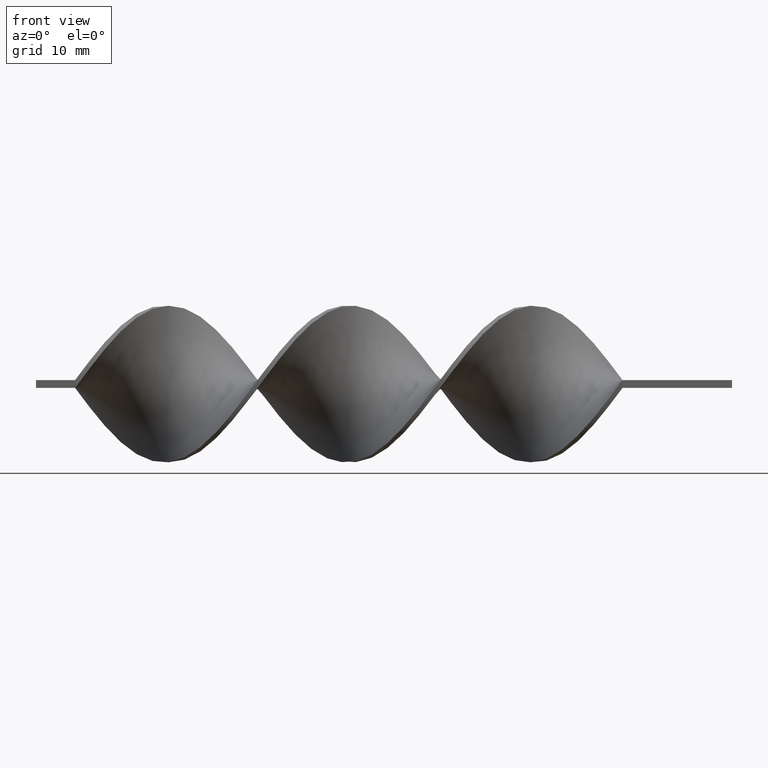
[diagram: clean part render]
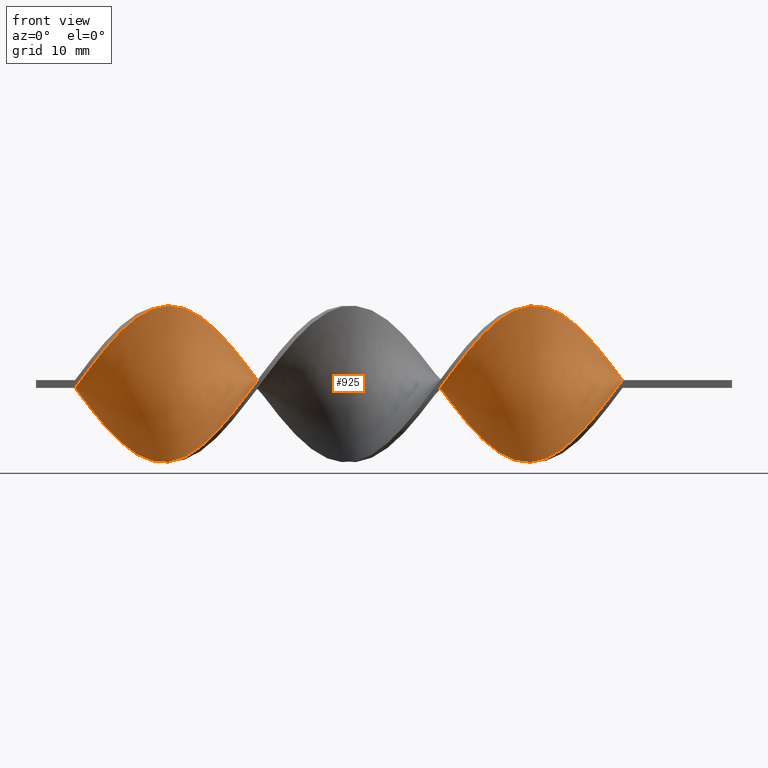
[diagram: same view with one face highlighted and labeled with its STEP entity id]
A machine part, front view. The second image highlights one B-rep face of the part: STEP entity #925.
In plain terms, the highlighted face is a freeform B-spline surface patch.
Its self-contained STEP definition (entity closure, byte-faithful):
#7 = ORIENTED_EDGE ( 'NONE', *, *, #165, .F. ) ;
#14 = CARTESIAN_POINT ( 'NONE',  ( -47.20512820512820440, -1.921697069441249628, -9.901267393559574970 ) ) ;
#17 = CARTESIAN_POINT ( 'NONE',  ( -25.66666666666666785, -0.5036723384328433140, -10.07344676865682764 ) ) ;
#25 = CARTESIAN_POINT ( 'NONE',  ( -19.38461538461538325, 7.153546152590613438, 7.005481956493501805 ) ) ;
#27 = CARTESIAN_POINT ( 'NONE',  ( -42.71794871794872250, 7.816668810831409964, 6.256971208322399391 ) ) ;
#31 = CARTESIAN_POINT ( 'NONE',  ( -20.28205128205128460, 6.302926640005410697, 7.874079717413027701 ) ) ;
#33 = CARTESIAN_POINT ( 'NONE',  ( -52.58974358974358410, -4.235384428724044525, 9.153662347191259485 ) ) ;
#38 = CARTESIAN_POINT ( 'NONE',  ( -22.07692307692308020, 4.235384428724049855, 9.153662347191257709 ) ) ;
#40 = CARTESIAN_POINT ( 'NONE',  ( -31.05128205128205821, 6.302926640005407144, -7.874079717413028590 ) ) ;
#48 = CARTESIAN_POINT ( 'NONE',  ( -45.41025641025640880, -4.235384428724056960, -9.153662347191254156 ) ) ;
#50 = CARTESIAN_POINT ( 'NONE',  ( -19.38461538461538325, -7.816668810831409964, -6.256971208322401168 ) ) ;
#54 = CARTESIAN_POINT ( 'NONE',  ( -16.69230769230769340, -9.597441021197470334, -3.101151636102497555 ) ) ;
#56 = CARTESIAN_POINT ( 'NONE',  ( -79.51282051282051100, 8.004165665175813515, -6.136884195573980350 ) ) ;
#65 = CARTESIAN_POINT ( 'NONE',  ( -76.82051282051281760, 5.269155534364728055, -8.513871032302143149 ) ) ;
#71 = CARTESIAN_POINT ( 'NONE',  ( -15.79487179487179205, 9.589760342116738556, 2.878627551588603062 ) ) ;
#79 = CARTESIAN_POINT ( 'NONE',  ( -37.33333333333332860, -10.00000000000000178, -0.4999999999999988343 ) ) ;
#86 = ORIENTED_EDGE ( 'NONE', *, *, #1263, .F. ) ;
#90 = CARTESIAN_POINT ( 'NONE',  ( -17.58974358974358765, 8.622198670510211826, 5.089959733264290520 ) ) ;
#95 = CARTESIAN_POINT ( 'NONE',  ( -30.15384615384615330, 5.269155534364728055, -8.513871032302143149 ) ) ;
#98 = CARTESIAN_POINT ( 'NONE',  ( -71.43589743589743080, 0.7090123655042038786, 9.987357081108200418 ) ) ;
#104 = CARTESIAN_POINT ( 'NONE',  ( -40.92307692307691980, 9.086921842553980611, 4.204503707611078944 ) ) ;
#106 = CARTESIAN_POINT ( 'NONE',  ( -61.56410256410256920, 9.939289008388868751, 1.714219832222605433 ) ) ;
#112 = CARTESIAN_POINT ( 'NONE',  ( -71.43589743589743080, -1.701721239602260516, -9.866820400852878592 ) ) ;
#113 = CARTESIAN_POINT ( 'NONE',  ( -80.41025641025640880, -9.086921842553984163, 4.204503707611081609 ) ) ;
#121 = CARTESIAN_POINT ( 'NONE',  ( -58.87179487179486870, -9.589760342116740333, 2.878627551588612388 ) ) ;
#122 = CARTESIAN_POINT ( 'NONE',  ( -56.17948717948717530, 8.576402663910496216, -5.307855779119664774 ) ) ;
#128 = CARTESIAN_POINT ( 'NONE',  ( -24.76923076923076650, -1.701721239602260516, -9.866820400852878592 ) ) ;
#129 = CARTESIAN_POINT ( 'NONE',  ( -79.51282051282051100, -8.576402663910499768, 5.307855779119662998 ) ) ;
#136 = CARTESIAN_POINT ( 'NONE',  ( -57.07692307692307310, 9.086921842553978834, -4.204503707611086938 ) ) ;
#146 = CARTESIAN_POINT ( 'NONE',  ( -58.87179487179486870, 9.829076006404296351, -1.907685734162560820 ) ) ;
#148 = CARTESIAN_POINT ( 'NONE',  ( -49.89743589743589069, -0.7090123655041976614, 9.987357081108202195 ) ) ;
#152 = CARTESIAN_POINT ( 'NONE',  ( -32.84615384615384670, -8.576402663910499768, 5.307855779119662998 ) ) ;
#155 = CARTESIAN_POINT ( 'NONE',  ( -39.12820512820512420, 9.829076006404298127, 1.907685734162548385 ) ) ;
#162 = CARTESIAN_POINT ( 'NONE',  ( -67.84615384615385381, 5.269155534364730720, 8.513871032302141373 ) ) ;
#165 = EDGE_CURVE ( 'NONE', #1292, #1039, #185, .T. ) ;
#168 = CARTESIAN_POINT ( 'NONE',  ( -83.10256410256410220, 9.939289008388868751, -1.714219832222609874 ) ) ;
#170 = CARTESIAN_POINT ( 'NONE',  ( -25.66666666666666785, -0.5036723384328420927, 10.07344676865682942 ) ) ;
#177 = CARTESIAN_POINT ( 'NONE',  ( -37.33333333333332860, 9.999999999999998224, -0.5000000000000012212 ) ) ;
#185 = B_SPLINE_CURVE_WITH_KNOTS ( 'NONE', 3,
 ( #371, #501, #990, #864 ),
 .UNSPECIFIED., .F., .F.,
 ( 4, 4 ),
 ( 0.000000000000000000, 1.000000000000000000 ),
 .UNSPECIFIED. ) ;
#186 = CARTESIAN_POINT ( 'NONE',  ( -14.89743589743589602, 9.939289008388868751, 1.714219832222605433 ) ) ;
#189 = CARTESIAN_POINT ( 'NONE',  ( -13.99999999999999645, -10.00000000000000178, 0.5000000000000000000 ) ) ;
#191 = CARTESIAN_POINT ( 'NONE',  ( -70.53846153846153300, 1.921697069441247852, 9.901267393559574970 ) ) ;
#194 = CARTESIAN_POINT ( 'NONE',  ( -24.76923076923076650, 0.7090123655042038786, 9.987357081108200418 ) ) ;
#201 = CARTESIAN_POINT ( 'NONE',  ( -63.35897435897435770, -9.597441021197470334, -3.101151636102497555 ) ) ;
#207 = CARTESIAN_POINT ( 'NONE',  ( -75.92307692307693401, 4.235384428724049855, -9.153662347191257709 ) ) ;
#214 = CARTESIAN_POINT ( 'NONE',  ( -55.28205128205128460, -7.153546152590610774, 7.005481956493506246 ) ) ;
#217 = CARTESIAN_POINT ( 'NONE',  ( -63.35897435897435770, 9.240231675844615467, 4.043035270954601579 ) ) ;
#224 = CARTESIAN_POINT ( 'NONE',  ( -48.10256410256410220, 1.701721239602261404, 9.866820400852876816 ) ) ;
#227 = CARTESIAN_POINT ( 'NONE',  ( -60.66666666666666430, 9.999999999999998224, 0.5000000000000000000 ) ) ;
#232 =( BOUNDED_CURVE ( )  B_SPLINE_CURVE ( 2, ( #287, #534, #663, #1033, #549, #1407, #25, #31, #1017, #38, #524, #542, #1537, #170, #644, #395, #1140, #424, #909, #1281, #763, #152, #1169, #1400, #1545, #1414, #265, #1381, #271, #1146, #754, #1024, #652, #1527, #414, #48, #789, #14, #1520, #1043, #1152, #898, #278, #514, #1273, #1296, #879, #1162, #136, #1389, #146, #407, #434, #777, #1510, #670, #891, #257, #1288, #1267, #162, #1004, #568, #191, #1187, #1088, #1448, #704, #917, #831, #815, #922, #807, #1420, #822, #694, #437, #294, #1195 ),
 .UNSPECIFIED., .F., .T. ) 
 B_SPLINE_CURVE_WITH_KNOTS ( ( 3, 2, 2, 2, 2, 2, 2, 2, 2, 2, 2, 2, 2, 2, 2, 2, 2, 2, 2, 2, 2, 2, 2, 2, 2, 2, 2, 2, 2, 2, 2, 2, 2, 2, 2, 2, 2, 2, 2, 3 ),
 ( 0.000000000000000000, 0.01923076923076923184, 0.03846153846153846367, 0.05769230769230768857, 0.07692307692307692735, 0.09615384615384615918, 0.1153846153846153771, 0.1346153846153846090, 0.1538461538461538547, 0.1730769230769230449, 0.1923076923076923184, 0.2115384615384615363, 0.2307692307692307543, 0.2500000000000000000, 0.2692307692307692180, 0.2884615384615384359, 0.3076923076923077094, 0.3269230769230769273, 0.3461538461538460898, 0.3653846153846153633, 0.3846153846153846367, 0.4038461538461539102, 0.4230769230769230727, 0.4423076923076922906, 0.4615384615384615086, 0.4807692307692307820, 0.5000000000000000000, 0.5192307692307692735, 0.5384615384615384359, 0.5576923076923077094, 0.5769230769230768718, 0.5961538461538461453, 0.6153846153846154188, 0.6346153846153845812, 0.6538461538461538547, 0.6730769230769230171, 0.6923076923076921796, 0.7115384615384615641, 0.7307692307692307265, 0.7500000000000000000 ),
 .UNSPECIFIED. ) 
 CURVE ( )  GEOMETRIC_REPRESENTATION_ITEM ( )  RATIONAL_B_SPLINE_CURVE ( ( 1.000000000000000000, 0.9927088740980539727, 1.000000000000000000, 0.9927088740980539727, 1.000000000000000000, 0.9927088740980539727, 1.000000000000000000, 0.9927088740980539727, 1.000000000000000000, 0.9927088740980539727, 1.000000000000000000, 0.9927088740980539727, 1.000000000000000000, 0.9927088740980539727, 1.000000000000000000, 0.9927088740980539727, 1.000000000000000000, 0.9927088740980539727, 1.000000000000000000, 0.9927088740980539727, 1.000000000000000000, 0.9927088740980539727, 1.000000000000000000, 0.9927088740980539727, 1.000000000000000000, 0.9927088740980539727, 1.000000000000000000, 0.9927088740980539727, 1.000000000000000000, 0.9927088740980539727, 1.000000000000000000, 0.9927088740980539727, 1.000000000000000000, 0.9927088740980539727, 1.000000000000000000, 0.9927088740980539727, 1.000000000000000000, 0.9927088740980539727, 1.000000000000000000, 0.9927088740980539727, 1.000000000000000000, 0.9927088740980539727, 1.000000000000000000, 0.9927088740980539727, 1.000000000000000000, 0.9927088740980539727, 1.000000000000000000, 0.9927088740980539727, 1.000000000000000000, 0.9927088740980539727, 1.000000000000000000, 0.9927088740980539727, 1.000000000000000000, 0.9927088740980539727, 1.000000000000000000, 0.9927088740980539727, 1.000000000000000000, 0.9927088740980539727, 1.000000000000000000, 0.9927088740980539727, 1.000000000000000000, 0.9927088740980539727, 1.000000000000000000, 0.9927088740980539727, 1.000000000000000000, 0.9927088740980539727, 1.000000000000000000, 0.9927088740980539727, 1.000000000000000000, 0.9927088740980539727, 1.000000000000000000, 0.9927088740980539727, 1.000000000000000000, 0.9927088740980539727, 1.000000000000000000, 0.9927088740980539727, 1.000000000000000000, 0.9927088740980539727, 1.000000000000000000 ) ) 
 REPRESENTATION_ITEM ( '' )  );
#233 = CARTESIAN_POINT ( 'NONE',  ( -39.12820512820512420, 9.829076006404298127, 1.907685734162548385 ) ) ;
#236 = CARTESIAN_POINT ( 'NONE',  ( -75.92307692307693401, -5.127343842764454429, 8.685525933616832006 ) ) ;
#242 = CARTESIAN_POINT ( 'NONE',  ( -47.20512820512820440, 2.899770140771672278, 9.660194033048927764 ) ) ;
#244 = CARTESIAN_POINT ( 'NONE',  ( -84.00000000000000000, -10.00000000000000178, -0.4999999999999988343 ) ) ;
#251 = CARTESIAN_POINT ( 'NONE',  ( -60.66666666666666430, -10.00000000000000178, 0.5000000000000000000 ) ) ;
#257 = CARTESIAN_POINT ( 'NONE',  ( -65.15384615384614619, 8.004165665175815292, 6.136884195573979461 ) ) ;
#265 = CARTESIAN_POINT ( 'NONE',  ( -37.33333333333332860, -10.00000000000000178, -0.4999999999999988343 ) ) ;
#267 = CARTESIAN_POINT ( 'NONE',  ( -48.10256410256410220, 1.701721239602261404, 9.866820400852876816 ) ) ;
#271 = CARTESIAN_POINT ( 'NONE',  ( -39.12820512820512420, -9.589760342116745662, -2.878627551588600397 ) ) ;
#273 = CARTESIAN_POINT ( 'NONE',  ( -17.58974358974358765, -9.086921842553984163, -4.204503707611079832 ) ) ;
#278 = CARTESIAN_POINT ( 'NONE',  ( -51.69230769230769340, 4.013556991768062687, -9.172859983332880773 ) ) ;
#281 = CARTESIAN_POINT ( 'NONE',  ( -30.15384615384615330, 5.269155534364728055, -8.513871032302143149 ) ) ;
#287 = CARTESIAN_POINT ( 'NONE',  ( -13.99999999999999822, 9.999999999999998224, 0.5000000000000000000 ) ) ;
#289 = CARTESIAN_POINT ( 'NONE',  ( -27.46153846153846345, 1.921697069441246519, -9.901267393559574970 ) ) ;
#294 = CARTESIAN_POINT ( 'NONE',  ( -83.10256410256410220, -10.06071099161113480, 0.7142198322226099849 ) ) ;
#306 = CARTESIAN_POINT ( 'NONE',  ( -53.48717948717948900, -5.269155534364728943, 8.513871032302144926 ) ) ;
#313 = CARTESIAN_POINT ( 'NONE',  ( -14.89743589743589602, -10.06071099161113480, -0.7142198322226054330 ) ) ;
#319 = CARTESIAN_POINT ( 'NONE',  ( -16.69230769230769695, 9.240231675844615467, 4.043035270954601579 ) ) ;
#328 = CARTESIAN_POINT ( 'NONE',  ( -18.48717948717948545, 8.004165665175815292, 6.136884195573979461 ) ) ;
#339 = CARTESIAN_POINT ( 'NONE',  ( -20.28205128205128460, 6.302926640005411585, 7.874079717413027701 ) ) ;
#343 = CARTESIAN_POINT ( 'NONE',  ( -52.58974358974359120, -4.235384428724044525, 9.153662347191259485 ) ) ;
#345 = CARTESIAN_POINT ( 'NONE',  ( -55.28205128205128460, -7.153546152590610774, 7.005481956493506246 ) ) ;
#352 = CARTESIAN_POINT ( 'NONE',  ( -49.89743589743589069, -0.7090123655041976614, 9.987357081108202195 ) ) ;
#355 = CARTESIAN_POINT ( 'NONE',  ( -44.51282051282051100, -5.269155534364732496, -8.513871032302141373 ) ) ;
#362 = CARTESIAN_POINT ( 'NONE',  ( -61.56410256410256920, -10.06071099161113480, -0.7142198322226054330 ) ) ;
#365 = CARTESIAN_POINT ( 'NONE',  ( -74.12820512820512420, -2.899770140771674498, 9.660194033048927764 ) ) ;
#369 = CARTESIAN_POINT ( 'NONE',  ( -80.41025641025640880, 8.622198670510211826, -5.089959733264292296 ) ) ;
#371 = CARTESIAN_POINT ( 'NONE',  ( -84.00000000000000000, 9.999999999999998224, -0.5000000000000012212 ) ) ;
#372 = CARTESIAN_POINT ( 'NONE',  ( -49.00000000000000711, 0.5036723384328385400, -10.07344676865682764 ) ) ;
#378 = CARTESIAN_POINT ( 'NONE',  ( -49.00000000000000000, 0.5036723384328420927, 10.07344676865682942 ) ) ;
#379 = CARTESIAN_POINT ( 'NONE',  ( -40.02564102564102200, -9.240231675844620796, -4.043035270954598914 ) ) ;
#395 = CARTESIAN_POINT ( 'NONE',  ( -27.46153846153846345, -2.899770140771674498, 9.660194033048927764 ) ) ;
#397 = CARTESIAN_POINT ( 'NONE',  ( -41.82051282051281760, 8.576402663910497992, 5.307855779119661221 ) ) ;
#407 = CARTESIAN_POINT ( 'NONE',  ( -59.76923076923076650, 10.06071099161113125, -0.7142198322226109841 ) ) ;
#409 = CARTESIAN_POINT ( 'NONE',  ( -49.00000000000000711, 0.5036723384328420927, 10.07344676865682764 ) ) ;
#414 = CARTESIAN_POINT ( 'NONE',  ( -44.51282051282051100, -5.269155534364732496, -8.513871032302141373 ) ) ;
#416 = CARTESIAN_POINT ( 'NONE',  ( -16.69230769230769695, -9.597441021197470334, -3.101151636102497555 ) ) ;
#424 = CARTESIAN_POINT ( 'NONE',  ( -29.25641025641025905, -5.127343842764455317, 8.685525933616832006 ) ) ;
#434 = CARTESIAN_POINT ( 'NONE',  ( -60.66666666666666430, 9.999999999999998224, 0.5000000000000000000 ) ) ;
#437 = CARTESIAN_POINT ( 'NONE',  ( -82.20512820512820440, -9.829076006404299903, 1.907685734162555047 ) ) ;
#439 = CARTESIAN_POINT ( 'NONE',  ( -31.94871794871794535, -7.816668810831408187, 6.256971208322403832 ) ) ;
#445 = CARTESIAN_POINT ( 'NONE',  ( -21.17948717948717885, -6.092139400258388626, -7.945806285570984784 ) ) ;
#447 = CARTESIAN_POINT ( 'NONE',  ( -58.87179487179486870, -9.589760342116740333, 2.878627551588612388 ) ) ;
#455 = CARTESIAN_POINT ( 'NONE',  ( -32.84615384615384670, -8.576402663910499768, 5.307855779119662998 ) ) ;
#462 = CARTESIAN_POINT ( 'NONE',  ( -13.99999999999999645, -10.00000000000000178, 0.5000000000000000000 ) ) ;
#465 = CARTESIAN_POINT ( 'NONE',  ( -75.02564102564102200, 3.078540749082645966, -9.527464870375414563 ) ) ;
#470 = CARTESIAN_POINT ( 'NONE',  ( -73.23076923076924061, 0.7090123655042004369, -9.987357081108200418 ) ) ;
#472 = CARTESIAN_POINT ( 'NONE',  ( -28.35897435897435770, -4.013556991768063575, 9.172859983332880773 ) ) ;
#477 = CARTESIAN_POINT ( 'NONE',  ( -23.87179487179487580, -2.899770140771675830, -9.660194033048927764 ) ) ;
#481 = CARTESIAN_POINT ( 'NONE',  ( -58.87179487179486870, 9.829076006404296351, -1.907685734162560820 ) ) ;
#482 = VECTOR ( 'NONE', #1081, 1000.000000000000000 ) ;
#488 = CARTESIAN_POINT ( 'NONE',  ( -35.53846153846153300, 9.589760342116736780, -2.878627551588606615 ) ) ;
#489 = CARTESIAN_POINT ( 'NONE',  ( -72.33333333333332860, -0.5036723384328420927, 10.07344676865682764 ) ) ;
#491 = ORIENTED_EDGE ( 'NONE', *, *, #1030, .T. ) ;
#493 = CARTESIAN_POINT ( 'NONE',  ( -79.51282051282051100, 8.004165665175813515, -6.136884195573980350 ) ) ;
#494 = CARTESIAN_POINT ( 'NONE',  ( -53.48717948717948900, 6.092139400258383297, -7.945806285570988337 ) ) ;
#500 = CARTESIAN_POINT ( 'NONE',  ( -75.92307692307691980, 4.235384428724048966, -9.153662347191257709 ) ) ;
#501 = CARTESIAN_POINT ( 'NONE',  ( -84.00000000000000000, 3.333333333333332149, -0.5000000000000004441 ) ) ;
#514 = CARTESIAN_POINT ( 'NONE',  ( -52.58974358974359120, 5.127343842764449100, -8.685525933616833782 ) ) ;
#516 = CARTESIAN_POINT ( 'NONE',  ( -29.25641025641025905, 4.235384428724049855, -9.153662347191257709 ) ) ;
#521 = CARTESIAN_POINT ( 'NONE',  ( -82.20512820512820440, 9.589760342116736780, -2.878627551588606615 ) ) ;
#524 = CARTESIAN_POINT ( 'NONE',  ( -22.97435897435897090, 3.078540749082649519, 9.527464870375414563 ) ) ;
#525 = CARTESIAN_POINT ( 'NONE',  ( -36.43589743589743790, 9.939289008388868751, -1.714219832222609874 ) ) ;
#534 = CARTESIAN_POINT ( 'NONE',  ( -14.89743589743589602, 9.939289008388868751, 1.714219832222605433 ) ) ;
#535 = CARTESIAN_POINT ( 'NONE',  ( -40.92307692307691980, 9.086921842553980611, 4.204503707611078944 ) ) ;
#542 = CARTESIAN_POINT ( 'NONE',  ( -23.87179487179487580, 1.921697069441247852, 9.901267393559574970 ) ) ;
#549 = CARTESIAN_POINT ( 'NONE',  ( -17.58974358974358765, 8.622198670510211826, 5.089959733264290520 ) ) ;
#551 = CARTESIAN_POINT ( 'NONE',  ( -84.00000000000000000, 9.999999999999998224, -0.5000000000000012212 ) ) ;
#556 = CARTESIAN_POINT ( 'NONE',  ( -33.74358974358974450, -9.086921842553984163, 4.204503707611081609 ) ) ;
#563 = CARTESIAN_POINT ( 'NONE',  ( -77.71794871794872961, 6.302926640005407144, -7.874079717413028590 ) ) ;
#568 = CARTESIAN_POINT ( 'NONE',  ( -69.64102564102564941, 3.078540749082649519, 9.527464870375414563 ) ) ;
#571 = CARTESIAN_POINT ( 'NONE',  ( -26.56410256410256210, -1.701721239602257185, 9.866820400852878592 ) ) ;
#582 = CARTESIAN_POINT ( 'NONE',  ( -62.46153846153845990, -9.829076006404301680, -1.907685734162551494 ) ) ;
#590 = CARTESIAN_POINT ( 'NONE',  ( -65.15384615384614619, -8.576402663910501545, -5.307855779119662110 ) ) ;
#594 = CARTESIAN_POINT ( 'NONE',  ( -26.56410256410256210, 0.7090123655042004369, -9.987357081108200418 ) ) ;
#596 = CARTESIAN_POINT ( 'NONE',  ( -76.82051282051281760, -6.092139400258385962, 7.945806285570986560 ) ) ;
#602 = CARTESIAN_POINT ( 'NONE',  ( -57.07692307692307310, -8.622198670510213603, 5.089959733264296737 ) ) ;
#606 = CARTESIAN_POINT ( 'NONE',  ( -64.25641025641024839, 8.622198670510211826, 5.089959733264290520 ) ) ;
#612 = CARTESIAN_POINT ( 'NONE',  ( -31.05128205128205465, 6.302926640005407144, -7.874079717413029478 ) ) ;
#614 = CARTESIAN_POINT ( 'NONE',  ( -66.94871794871794179, 6.302926640005411585, 7.874079717413027701 ) ) ;
#620 = CARTESIAN_POINT ( 'NONE',  ( -69.64102564102564941, -4.013556991768067128, -9.172859983332880773 ) ) ;
#630 = CARTESIAN_POINT ( 'NONE',  ( -70.53846153846153300, -2.899770140771675830, -9.660194033048927764 ) ) ;
#631 = CARTESIAN_POINT ( 'NONE',  ( -81.30769230769233502, -9.597441021197468558, 3.101151636102500664 ) ) ;
#644 = CARTESIAN_POINT ( 'NONE',  ( -26.56410256410256210, -1.701721239602257185, 9.866820400852878592 ) ) ;
#646 = CARTESIAN_POINT ( 'NONE',  ( -28.35897435897435770, 3.078540749082645966, -9.527464870375414563 ) ) ;
#652 = CARTESIAN_POINT ( 'NONE',  ( -42.71794871794872250, -7.153546152590616991, -7.005481956493500029 ) ) ;
#654 = EDGE_CURVE ( 'NONE', #1485, #1500, #1602, .T. ) ;
#655 = CARTESIAN_POINT ( 'NONE',  ( -51.69230769230769340, -3.078540749082649963, 9.527464870375414563 ) ) ;
#663 = CARTESIAN_POINT ( 'NONE',  ( -15.79487179487179205, 9.589760342116738556, 2.878627551588603062 ) ) ;
#670 = CARTESIAN_POINT ( 'NONE',  ( -63.35897435897436480, 9.240231675844613690, 4.043035270954601579 ) ) ;
#672 = CARTESIAN_POINT ( 'NONE',  ( -35.53846153846153300, 9.589760342116736780, -2.878627551588606615 ) ) ;
#679 = CARTESIAN_POINT ( 'NONE',  ( -21.17948717948717885, 5.269155534364730720, 8.513871032302141373 ) ) ;
#683 = CARTESIAN_POINT ( 'NONE',  ( -17.58974358974358765, -9.086921842553984163, -4.204503707611079832 ) ) ;
#687 = CARTESIAN_POINT ( 'NONE',  ( -54.38461538461538680, -6.302926640005404479, 7.874079717413032142 ) ) ;
#692 = CARTESIAN_POINT ( 'NONE',  ( -57.97435897435897090, -9.240231675844617243, 4.043035270954606020 ) ) ;
#694 = CARTESIAN_POINT ( 'NONE',  ( -81.30769230769232081, -9.597441021197468558, 3.101151636102500220 ) ) ;
#698 = CARTESIAN_POINT ( 'NONE',  ( -13.99999999999999822, 9.999999999999998224, 0.5000000000000000000 ) ) ;
#704 = CARTESIAN_POINT ( 'NONE',  ( -74.12820512820510999, -2.899770140771674498, 9.660194033048927764 ) ) ;
#707 = CARTESIAN_POINT ( 'NONE',  ( -60.66666666666666430, -10.00000000000000178, 0.5000000000000000000 ) ) ;
#712 = CARTESIAN_POINT ( 'NONE',  ( -56.17948717948717530, -8.004165665175817068, 6.136884195573983014 ) ) ;
#714 = CARTESIAN_POINT ( 'NONE',  ( -45.41025641025640880, -4.235384428724057848, -9.153662347191254156 ) ) ;
#718 = CARTESIAN_POINT ( 'NONE',  ( -53.48717948717948900, -5.269155534364728943, 8.513871032302144926 ) ) ;
#722 = CARTESIAN_POINT ( 'NONE',  ( -55.28205128205128460, 7.816668810831404635, -6.256971208322405609 ) ) ;
#727 = CARTESIAN_POINT ( 'NONE',  ( -77.71794871794874382, 6.302926640005407144, -7.874079717413029478 ) ) ;
#728 = ORIENTED_EDGE ( 'NONE', *, *, #654, .F. ) ;
#729 = CARTESIAN_POINT ( 'NONE',  ( -40.92307692307691980, -8.622198670510215379, -5.089959733264289632 ) ) ;
#735 = CARTESIAN_POINT ( 'NONE',  ( -46.30769230769230660, 4.013556991768065352, 9.172859983332880773 ) ) ;
#746 = CARTESIAN_POINT ( 'NONE',  ( -62.46153846153845990, -9.829076006404301680, -1.907685734162551494 ) ) ;
#747 = CARTESIAN_POINT ( 'NONE',  ( -70.53846153846153300, 1.921697069441247852, 9.901267393559574970 ) ) ;
#754 = CARTESIAN_POINT ( 'NONE',  ( -40.92307692307691980, -8.622198670510215379, -5.089959733264289632 ) ) ;
#761 = CARTESIAN_POINT ( 'NONE',  ( -81.30769230769232081, 9.240231675844611914, -4.043035270954604243 ) ) ;
#763 = CARTESIAN_POINT ( 'NONE',  ( -31.94871794871794535, -7.816668810831408187, 6.256971208322403832 ) ) ;
#772 = CARTESIAN_POINT ( 'NONE',  ( -40.02564102564102200, 9.597441021197468558, 3.101151636102494003 ) ) ;
#777 = CARTESIAN_POINT ( 'NONE',  ( -61.56410256410256920, 9.939289008388868751, 1.714219832222605433 ) ) ;
#780 = CARTESIAN_POINT ( 'NONE',  ( -15.79487179487179205, -9.829076006404301680, -1.907685734162551494 ) ) ;
#789 = CARTESIAN_POINT ( 'NONE',  ( -46.30769230769230660, -3.078540749082653072, -9.527464870375414563 ) ) ;
#796 = CARTESIAN_POINT ( 'NONE',  ( -22.97435897435897090, -4.013556991768067128, -9.172859983332880773 ) ) ;
#798 = CARTESIAN_POINT ( 'NONE',  ( -14.89743589743589602, -10.06071099161113480, -0.7142198322226053220 ) ) ;
#807 = CARTESIAN_POINT ( 'NONE',  ( -78.61538461538461320, -7.816668810831408187, 6.256971208322403832 ) ) ;
#809 = CARTESIAN_POINT ( 'NONE',  ( -78.61538461538461320, 7.153546152590610774, -7.005481956493504470 ) ) ;
#815 = CARTESIAN_POINT ( 'NONE',  ( -76.82051282051281760, -6.092139400258385962, 7.945806285570986560 ) ) ;
#817 = CARTESIAN_POINT ( 'NONE',  ( -22.97435897435897090, 3.078540749082649519, 9.527464870375414563 ) ) ;
#822 = CARTESIAN_POINT ( 'NONE',  ( -80.41025641025640880, -9.086921842553984163, 4.204503707611081609 ) ) ;
#825 = CARTESIAN_POINT ( 'NONE',  ( -35.53846153846153300, -9.829076006404299903, 1.907685734162555047 ) ) ;
#831 = CARTESIAN_POINT ( 'NONE',  ( -75.92307692307691980, -5.127343842764455317, 8.685525933616832006 ) ) ;
#834 = CARTESIAN_POINT ( 'NONE',  ( -25.66666666666666785, -0.5036723384328420927, 10.07344676865682764 ) ) ;
#839 = CARTESIAN_POINT ( 'NONE',  ( -33.74358974358974450, 8.622198670510211826, -5.089959733264292296 ) ) ;
#840 = CARTESIAN_POINT ( 'NONE',  ( -66.94871794871794179, -7.056934957752321935, -7.206086637525141114 ) ) ;
#843 = CARTESIAN_POINT ( 'NONE',  ( -63.35897435897436480, -9.597441021197470334, -3.101151636102497555 ) ) ;
#847 = CARTESIAN_POINT ( 'NONE',  ( -46.30769230769230660, -3.078540749082653072, -9.527464870375414563 ) ) ;
#852 = CARTESIAN_POINT ( 'NONE',  ( -74.12820512820510999, 1.921697069441246519, -9.901267393559574970 ) ) ;
#853 = CARTESIAN_POINT ( 'NONE',  ( -75.02564102564102200, -4.013556991768063575, 9.172859983332880773 ) ) ;
#856 = CARTESIAN_POINT ( 'NONE',  ( -32.84615384615384670, 8.004165665175813515, -6.136884195573980350 ) ) ;
#859 = CARTESIAN_POINT ( 'NONE',  ( -54.38461538461538680, 7.056934957752313942, -7.206086637525145555 ) ) ;
#863 = CARTESIAN_POINT ( 'NONE',  ( -44.51282051282051100, 6.092139400258386850, 7.945806285570984784 ) ) ;
#864 = CARTESIAN_POINT ( 'NONE',  ( -84.00000000000000000, -10.00000000000000178, -0.4999999999999988343 ) ) ;
#879 = CARTESIAN_POINT ( 'NONE',  ( -55.28205128205128460, 7.816668810831404635, -6.256971208322405609 ) ) ;
#881 = CARTESIAN_POINT ( 'NONE',  ( -45.41025641025640880, 5.127343842764457982, 8.685525933616828453 ) ) ;
#891 = CARTESIAN_POINT ( 'NONE',  ( -64.25641025641024839, 8.622198670510211826, 5.089959733264290520 ) ) ;
#893 = CARTESIAN_POINT ( 'NONE',  ( -47.20512820512820440, 2.899770140771672722, 9.660194033048927764 ) ) ;
#898 = CARTESIAN_POINT ( 'NONE',  ( -50.79487179487178850, 2.899770140771668281, -9.660194033048929541 ) ) ;
#900 = CARTESIAN_POINT ( 'NONE',  ( -38.23076923076922640, 10.06071099161113125, 0.7142198322226029905 ) ) ;
#906 =( BOUNDED_CURVE ( )  B_SPLINE_CURVE ( 2, ( #462, #313, #1440, #54, #683, #947, #1061, #1580, #445, #1432, #796, #477, #128, #972, #594, #953, #1096, #1221, #95, #612, #1230, #856, #839, #989, #488, #1365, #1469, #1493, #233, #1107, #104, #1479, #1338, #963, #863, #982, #735, #242, #224, #378, #352, #1248, #1372, #343, #718, #1601, #214, #712, #602, #1590, #121, #1256, #251, #362, #746, #843, #1486, #1242, #1132, #1614, #1117, #1347, #620, #630, #112, #1457, #470, #852, #1125, #500, #1356, #727, #1608, #493, #369, #761, #521, #168, #1508 ),
 .UNSPECIFIED., .F., .T. ) 
 B_SPLINE_CURVE_WITH_KNOTS ( ( 3, 2, 2, 2, 2, 2, 2, 2, 2, 2, 2, 2, 2, 2, 2, 2, 2, 2, 2, 2, 2, 2, 2, 2, 2, 2, 2, 2, 2, 2, 2, 2, 2, 2, 2, 2, 2, 2, 2, 3 ),
 ( 0.000000000000000000, 0.01923076923076923184, 0.03846153846153846367, 0.05769230769230768857, 0.07692307692307692735, 0.09615384615384615918, 0.1153846153846153771, 0.1346153846153846090, 0.1538461538461538547, 0.1730769230769230449, 0.1923076923076923184, 0.2115384615384615363, 0.2307692307692307543, 0.2500000000000000000, 0.2692307692307692180, 0.2884615384615384359, 0.3076923076923077094, 0.3269230769230769273, 0.3461538461538460898, 0.3653846153846153633, 0.3846153846153846367, 0.4038461538461539102, 0.4230769230769230727, 0.4423076923076922906, 0.4615384615384615086, 0.4807692307692307820, 0.5000000000000000000, 0.5192307692307692735, 0.5384615384615384359, 0.5576923076923077094, 0.5769230769230768718, 0.5961538461538461453, 0.6153846153846154188, 0.6346153846153845812, 0.6538461538461538547, 0.6730769230769230171, 0.6923076923076921796, 0.7115384615384615641, 0.7307692307692307265, 0.7500000000000000000 ),
 .UNSPECIFIED. ) 
 CURVE ( )  GEOMETRIC_REPRESENTATION_ITEM ( )  RATIONAL_B_SPLINE_CURVE ( ( 1.000000000000000000, 0.9927088740980539727, 1.000000000000000000, 0.9927088740980539727, 1.000000000000000000, 0.9927088740980539727, 1.000000000000000000, 0.9927088740980539727, 1.000000000000000000, 0.9927088740980539727, 1.000000000000000000, 0.9927088740980539727, 1.000000000000000000, 0.9927088740980539727, 1.000000000000000000, 0.9927088740980539727, 1.000000000000000000, 0.9927088740980539727, 1.000000000000000000, 0.9927088740980539727, 1.000000000000000000, 0.9927088740980539727, 1.000000000000000000, 0.9927088740980539727, 1.000000000000000000, 0.9927088740980539727, 1.000000000000000000, 0.9927088740980539727, 1.000000000000000000, 0.9927088740980539727, 1.000000000000000000, 0.9927088740980539727, 1.000000000000000000, 0.9927088740980539727, 1.000000000000000000, 0.9927088740980539727, 1.000000000000000000, 0.9927088740980539727, 1.000000000000000000, 0.9927088740980539727, 1.000000000000000000, 0.9927088740980539727, 1.000000000000000000, 0.9927088740980539727, 1.000000000000000000, 0.9927088740980539727, 1.000000000000000000, 0.9927088740980539727, 1.000000000000000000, 0.9927088740980539727, 1.000000000000000000, 0.9927088740980539727, 1.000000000000000000, 0.9927088740980539727, 1.000000000000000000, 0.9927088740980539727, 1.000000000000000000, 0.9927088740980539727, 1.000000000000000000, 0.9927088740980539727, 1.000000000000000000, 0.9927088740980539727, 1.000000000000000000, 0.9927088740980539727, 1.000000000000000000, 0.9927088740980539727, 1.000000000000000000, 0.9927088740980539727, 1.000000000000000000, 0.9927088740980539727, 1.000000000000000000, 0.9927088740980539727, 1.000000000000000000, 0.9927088740980539727, 1.000000000000000000, 0.9927088740980539727, 1.000000000000000000, 0.9927088740980539727, 1.000000000000000000 ) ) 
 REPRESENTATION_ITEM ( '' )  );
#909 = CARTESIAN_POINT ( 'NONE',  ( -30.15384615384615330, -6.092139400258385962, 7.945806285570986560 ) ) ;
#911 = CARTESIAN_POINT ( 'NONE',  ( -26.56410256410256210, 0.7090123655042004369, -9.987357081108200418 ) ) ;
#917 = CARTESIAN_POINT ( 'NONE',  ( -75.02564102564102200, -4.013556991768063575, 9.172859983332880773 ) ) ;
#919 = CARTESIAN_POINT ( 'NONE',  ( -20.28205128205128460, -7.056934957752321935, -7.206086637525141114 ) ) ;
#922 = CARTESIAN_POINT ( 'NONE',  ( -77.71794871794874382, -7.056934957752318383, 7.206086637525142891 ) ) ;
#924 = CARTESIAN_POINT ( 'NONE',  ( -38.23076923076922640, -9.939289008388872304, -1.714219832222602991 ) ) ;
#925 = ADVANCED_FACE ( 'NONE', ( #1408 ), #1091, .T. ) ;
#933 = CARTESIAN_POINT ( 'NONE',  ( -67.84615384615385381, -6.092139400258388626, -7.945806285570984784 ) ) ;
#941 = CARTESIAN_POINT ( 'NONE',  ( -23.87179487179487580, 1.921697069441247852, 9.901267393559574970 ) ) ;
#947 = CARTESIAN_POINT ( 'NONE',  ( -18.48717948717948545, -8.576402663910501545, -5.307855779119662110 ) ) ;
#950 = CARTESIAN_POINT ( 'NONE',  ( -19.38461538461538325, 7.153546152590613438, 7.005481956493501805 ) ) ;
#953 = CARTESIAN_POINT ( 'NONE',  ( -27.46153846153846345, 1.921697069441246519, -9.901267393559574970 ) ) ;
#956 = CARTESIAN_POINT ( 'NONE',  ( -29.25641025641025905, -5.127343842764454429, 8.685525933616832006 ) ) ;
#963 = CARTESIAN_POINT ( 'NONE',  ( -43.61538461538461320, 7.056934957752321047, 7.206086637525138450 ) ) ;
#966 = CARTESIAN_POINT ( 'NONE',  ( -47.20512820512820440, -1.921697069441249406, -9.901267393559574970 ) ) ;
#972 = CARTESIAN_POINT ( 'NONE',  ( -25.66666666666666785, -0.5036723384328433140, -10.07344676865682942 ) ) ;
#975 = CARTESIAN_POINT ( 'NONE',  ( -49.89743589743589069, 1.701721239602248970, -9.866820400852880368 ) ) ;
#982 = CARTESIAN_POINT ( 'NONE',  ( -45.41025641025640880, 5.127343842764457982, 8.685525933616828453 ) ) ;
#984 = CARTESIAN_POINT ( 'NONE',  ( -57.97435897435897090, 9.597441021197465005, -3.101151636102501996 ) ) ;
#989 = CARTESIAN_POINT ( 'NONE',  ( -34.64102564102564230, 9.240231675844611914, -4.043035270954604243 ) ) ;
#990 = CARTESIAN_POINT ( 'NONE',  ( -84.00000000000000000, -3.333333333333335702, -0.4999999999999995559 ) ) ;
#992 = CARTESIAN_POINT ( 'NONE',  ( -66.05128205128204399, 7.153546152590613438, 7.005481956493501805 ) ) ;
#998 = CARTESIAN_POINT ( 'NONE',  ( -78.61538461538461320, -7.816668810831408187, 6.256971208322403832 ) ) ;
#1004 = CARTESIAN_POINT ( 'NONE',  ( -68.74358974358973740, 4.235384428724049855, 9.153662347191257709 ) ) ;
#1006 = CARTESIAN_POINT ( 'NONE',  ( -43.61538461538461320, 7.056934957752321047, 7.206086637525138450 ) ) ;
#1017 = CARTESIAN_POINT ( 'NONE',  ( -21.17948717948717885, 5.269155534364730720, 8.513871032302141373 ) ) ;
#1019 = CARTESIAN_POINT ( 'NONE',  ( -24.76923076923076650, -1.701721239602260516, -9.866820400852878592 ) ) ;
#1024 = CARTESIAN_POINT ( 'NONE',  ( -41.82051282051281760, -8.004165665175818845, -6.136884195573978573 ) ) ;
#1027 = CARTESIAN_POINT ( 'NONE',  ( -22.97435897435897090, -4.013556991768067128, -9.172859983332880773 ) ) ;
#1030 = EDGE_CURVE ( 'NONE', #1485, #1039, #232, .T. ) ;
#1033 = CARTESIAN_POINT ( 'NONE',  ( -16.69230769230769340, 9.240231675844613690, 4.043035270954601579 ) ) ;
#1039 = VERTEX_POINT ( 'NONE', #1213 ) ;
#1040 = CARTESIAN_POINT ( 'NONE',  ( -13.99999999999999822, 9.999999999999998224, 0.5000000000000000000 ) ) ;
#1043 = CARTESIAN_POINT ( 'NONE',  ( -49.00000000000000000, 0.5036723384328385400, -10.07344676865682942 ) ) ;
#1046 = CARTESIAN_POINT ( 'NONE',  ( -22.07692307692308376, -5.127343842764454429, -8.685525933616832006 ) ) ;
#1054 = CARTESIAN_POINT ( 'NONE',  ( -34.64102564102564230, -9.597441021197468558, 3.101151636102500664 ) ) ;
#1061 = CARTESIAN_POINT ( 'NONE',  ( -19.38461538461538325, -7.816668810831409964, -6.256971208322401168 ) ) ;
#1063 = CARTESIAN_POINT ( 'NONE',  ( -84.00000000000000000, 9.999999999999998224, -0.5000000000000012212 ) ) ;
#1072 = CARTESIAN_POINT ( 'NONE',  ( -31.05128205128205821, -7.056934957752318383, 7.206086637525142891 ) ) ;
#1081 = DIRECTION ( 'NONE',  ( 8.673617379884035472E-17, -1.000000000000000000, 0.000000000000000000 ) ) ;
#1083 = CARTESIAN_POINT ( 'NONE',  ( -64.25641025641024839, -9.086921842553984163, -4.204503707611079832 ) ) ;
#1088 = CARTESIAN_POINT ( 'NONE',  ( -72.33333333333332860, -0.5036723384328420927, 10.07344676865682942 ) ) ;
#1090 = CARTESIAN_POINT ( 'NONE',  ( -73.23076923076924061, 0.7090123655042004369, -9.987357081108200418 ) ) ;
#1091 =( BOUNDED_SURFACE ( )  B_SPLINE_SURFACE ( 1, 2, ( 
 ( #1540, #798, #780, #416, #273, #1304, #50, #919, #1142, #1046, #1027, #1147, #1019, #17, #911, #289, #646, #516, #281, #40, #1297, #1511, #1547, #1154, #672, #525, #177, #900, #155, #772, #535, #397, #27, #1006, #1173, #881, #1391, #893, #267, #409, #148, #1284, #655, #33, #306, #687, #345, #1316, #1565, #692, #447, #1453, #707, #1460, #582, #201, #1083, #590, #1322, #840, #933, #1190, #1577, #1216, #1441, #1181, #1090, #1312, #465, #207, #65, #563, #809, #56, #1332, #1433, #1197, #1340, #1063 ),
 ( #698, #186, #71, #319, #90, #328, #950, #339, #679, #1205, #817, #941, #194, #834, #571, #1584, #472, #956, #1558, #1072, #439, #455, #556, #1054, #825, #1552, #79, #924, #1429, #379, #729, #1234, #1350, #1244, #355, #714, #847, #966, #1472, #372, #975, #1488, #1258, #1480, #494, #859, #722, #122, #1595, #984, #481, #1133, #227, #106, #1100, #217, #606, #1367, #992, #614, #1111, #1603, #1126, #747, #98, #489, #1358, #365, #853, #236, #596, #1617, #998, #129, #113, #631, #1118, #1249, #244 ) ),
 .UNSPECIFIED., .F., .F., .F. ) 
 B_SPLINE_SURFACE_WITH_KNOTS ( ( 2, 2 ),
 ( 3, 2, 2, 2, 2, 2, 2, 2, 2, 2, 2, 2, 2, 2, 2, 2, 2, 2, 2, 2, 2, 2, 2, 2, 2, 2, 2, 2, 2, 2, 2, 2, 2, 2, 2, 2, 2, 2, 2, 3 ),
 ( 0.000000000000000000, 1.000000000000000000 ),
 ( 0.000000000000000000, 0.01923076923076923184, 0.03846153846153846367, 0.05769230769230769551, 0.07692307692307692735, 0.09615384615384615918, 0.1153846153846153910, 0.1346153846153846090, 0.1538461538461538547, 0.1730769230769230727, 0.1923076923076923184, 0.2115384615384615363, 0.2307692307692307820, 0.2500000000000000000, 0.2692307692307692180, 0.2884615384615384359, 0.3076923076923077094, 0.3269230769230769273, 0.3461538461538461453, 0.3653846153846153633, 0.3846153846153846367, 0.4038461538461538547, 0.4230769230769230727, 0.4423076923076922906, 0.4615384615384615641, 0.4807692307692307820, 0.5000000000000000000, 0.5192307692307692735, 0.5384615384615384359, 0.5576923076923077094, 0.5769230769230768718, 0.5961538461538461453, 0.6153846153846154188, 0.6346153846153845812, 0.6538461538461538547, 0.6730769230769231282, 0.6923076923076922906, 0.7115384615384615641, 0.7307692307692307265, 0.7500000000000000000 ),
 .UNSPECIFIED. ) 
 GEOMETRIC_REPRESENTATION_ITEM ( )  RATIONAL_B_SPLINE_SURFACE ( (
 ( 1.000000000000000000, 0.9927088740980539727, 1.000000000000000000, 0.9927088740980539727, 1.000000000000000000, 0.9927088740980539727, 1.000000000000000000, 0.9927088740980539727, 1.000000000000000000, 0.9927088740980539727, 1.000000000000000000, 0.9927088740980539727, 1.000000000000000000, 0.9927088740980539727, 1.000000000000000000, 0.9927088740980539727, 1.000000000000000000, 0.9927088740980539727, 1.000000000000000000, 0.9927088740980539727, 1.000000000000000000, 0.9927088740980539727, 1.000000000000000000, 0.9927088740980539727, 1.000000000000000000, 0.9927088740980539727, 1.000000000000000000, 0.9927088740980539727, 1.000000000000000000, 0.9927088740980539727, 1.000000000000000000, 0.9927088740980539727, 1.000000000000000000, 0.9927088740980539727, 1.000000000000000000, 0.9927088740980539727, 1.000000000000000000, 0.9927088740980539727, 1.000000000000000000, 0.9927088740980539727, 1.000000000000000000, 0.9927088740980539727, 1.000000000000000000, 0.9927088740980539727, 1.000000000000000000, 0.9927088740980539727, 1.000000000000000000, 0.9927088740980539727, 1.000000000000000000, 0.9927088740980539727, 1.000000000000000000, 0.9927088740980539727, 1.000000000000000000, 0.9927088740980539727, 1.000000000000000000, 0.9927088740980539727, 1.000000000000000000, 0.9927088740980539727, 1.000000000000000000, 0.9927088740980539727, 1.000000000000000000, 0.9927088740980539727, 1.000000000000000000, 0.9927088740980539727, 1.000000000000000000, 0.9927088740980539727, 1.000000000000000000, 0.9927088740980539727, 1.000000000000000000, 0.9927088740980539727, 1.000000000000000000, 0.9927088740980539727, 1.000000000000000000, 0.9927088740980539727, 1.000000000000000000, 0.9927088740980539727, 1.000000000000000000, 0.9927088740980539727, 1.000000000000000000),
 ( 1.000000000000000000, 0.9927088740980539727, 1.000000000000000000, 0.9927088740980539727, 1.000000000000000000, 0.9927088740980539727, 1.000000000000000000, 0.9927088740980539727, 1.000000000000000000, 0.9927088740980539727, 1.000000000000000000, 0.9927088740980539727, 1.000000000000000000, 0.9927088740980539727, 1.000000000000000000, 0.9927088740980539727, 1.000000000000000000, 0.9927088740980539727, 1.000000000000000000, 0.9927088740980539727, 1.000000000000000000, 0.9927088740980539727, 1.000000000000000000, 0.9927088740980539727, 1.000000000000000000, 0.9927088740980539727, 1.000000000000000000, 0.9927088740980539727, 1.000000000000000000, 0.9927088740980539727, 1.000000000000000000, 0.9927088740980539727, 1.000000000000000000, 0.9927088740980539727, 1.000000000000000000, 0.9927088740980539727, 1.000000000000000000, 0.9927088740980539727, 1.000000000000000000, 0.9927088740980539727, 1.000000000000000000, 0.9927088740980539727, 1.000000000000000000, 0.9927088740980539727, 1.000000000000000000, 0.9927088740980539727, 1.000000000000000000, 0.9927088740980539727, 1.000000000000000000, 0.9927088740980539727, 1.000000000000000000, 0.9927088740980539727, 1.000000000000000000, 0.9927088740980539727, 1.000000000000000000, 0.9927088740980539727, 1.000000000000000000, 0.9927088740980539727, 1.000000000000000000, 0.9927088740980539727, 1.000000000000000000, 0.9927088740980539727, 1.000000000000000000, 0.9927088740980539727, 1.000000000000000000, 0.9927088740980539727, 1.000000000000000000, 0.9927088740980539727, 1.000000000000000000, 0.9927088740980539727, 1.000000000000000000, 0.9927088740980539727, 1.000000000000000000, 0.9927088740980539727, 1.000000000000000000, 0.9927088740980539727, 1.000000000000000000, 0.9927088740980539727, 1.000000000000000000) ) ) 
 REPRESENTATION_ITEM ( '' )  SURFACE ( )  );
#1096 = CARTESIAN_POINT ( 'NONE',  ( -28.35897435897435770, 3.078540749082645966, -9.527464870375414563 ) ) ;
#1100 = CARTESIAN_POINT ( 'NONE',  ( -62.46153846153845990, 9.589760342116738556, 2.878627551588603062 ) ) ;
#1107 = CARTESIAN_POINT ( 'NONE',  ( -40.02564102564102200, 9.597441021197468558, 3.101151636102494003 ) ) ;
#1111 = CARTESIAN_POINT ( 'NONE',  ( -67.84615384615385381, 5.269155534364730720, 8.513871032302141373 ) ) ;
#1117 = CARTESIAN_POINT ( 'NONE',  ( -67.84615384615385381, -6.092139400258388626, -7.945806285570984784 ) ) ;
#1118 = CARTESIAN_POINT ( 'NONE',  ( -82.20512820512820440, -9.829076006404299903, 1.907685734162555047 ) ) ;
#1125 = CARTESIAN_POINT ( 'NONE',  ( -75.02564102564102200, 3.078540749082645966, -9.527464870375414563 ) ) ;
#1126 = CARTESIAN_POINT ( 'NONE',  ( -69.64102564102564941, 3.078540749082649519, 9.527464870375414563 ) ) ;
#1132 = CARTESIAN_POINT ( 'NONE',  ( -66.05128205128204399, -7.816668810831409964, -6.256971208322401168 ) ) ;
#1133 = CARTESIAN_POINT ( 'NONE',  ( -59.76923076923077360, 10.06071099161113125, -0.7142198322226109841 ) ) ;
#1140 = CARTESIAN_POINT ( 'NONE',  ( -28.35897435897435770, -4.013556991768063575, 9.172859983332880773 ) ) ;
#1142 = CARTESIAN_POINT ( 'NONE',  ( -21.17948717948717885, -6.092139400258388626, -7.945806285570984784 ) ) ;
#1146 = CARTESIAN_POINT ( 'NONE',  ( -40.02564102564102200, -9.240231675844619019, -4.043035270954598914 ) ) ;
#1147 = CARTESIAN_POINT ( 'NONE',  ( -23.87179487179487580, -2.899770140771675830, -9.660194033048927764 ) ) ;
#1152 = CARTESIAN_POINT ( 'NONE',  ( -49.89743589743589069, 1.701721239602248970, -9.866820400852880368 ) ) ;
#1154 = CARTESIAN_POINT ( 'NONE',  ( -34.64102564102564230, 9.240231675844613690, -4.043035270954605132 ) ) ;
#1162 = CARTESIAN_POINT ( 'NONE',  ( -56.17948717948717530, 8.576402663910496216, -5.307855779119664774 ) ) ;
#1169 = CARTESIAN_POINT ( 'NONE',  ( -33.74358974358974450, -9.086921842553984163, 4.204503707611081609 ) ) ;
#1173 = CARTESIAN_POINT ( 'NONE',  ( -44.51282051282051100, 6.092139400258386850, 7.945806285570984784 ) ) ;
#1181 = CARTESIAN_POINT ( 'NONE',  ( -72.33333333333332860, -0.5036723384328433140, -10.07344676865682764 ) ) ;
#1187 = CARTESIAN_POINT ( 'NONE',  ( -71.43589743589743080, 0.7090123655042038786, 9.987357081108200418 ) ) ;
#1190 = CARTESIAN_POINT ( 'NONE',  ( -68.74358974358973740, -5.127343842764454429, -8.685525933616832006 ) ) ;
#1195 = CARTESIAN_POINT ( 'NONE',  ( -84.00000000000000000, -10.00000000000000178, -0.4999999999999988343 ) ) ;
#1197 = CARTESIAN_POINT ( 'NONE',  ( -82.20512820512820440, 9.589760342116736780, -2.878627551588606615 ) ) ;
#1205 = CARTESIAN_POINT ( 'NONE',  ( -22.07692307692308376, 4.235384428724050743, 9.153662347191257709 ) ) ;
#1213 = CARTESIAN_POINT ( 'NONE',  ( -84.00000000000000000, -10.00000000000000178, -0.4999999999999988343 ) ) ;
#1216 = CARTESIAN_POINT ( 'NONE',  ( -70.53846153846153300, -2.899770140771675830, -9.660194033048927764 ) ) ;
#1221 = CARTESIAN_POINT ( 'NONE',  ( -29.25641025641025905, 4.235384428724048966, -9.153662347191257709 ) ) ;
#1230 = CARTESIAN_POINT ( 'NONE',  ( -31.94871794871794535, 7.153546152590610774, -7.005481956493504470 ) ) ;
#1234 = CARTESIAN_POINT ( 'NONE',  ( -41.82051282051281760, -8.004165665175818845, -6.136884195573978573 ) ) ;
#1242 = CARTESIAN_POINT ( 'NONE',  ( -65.15384615384614619, -8.576402663910501545, -5.307855779119662110 ) ) ;
#1244 = CARTESIAN_POINT ( 'NONE',  ( -43.61538461538461320, -6.302926640005416026, -7.874079717413025925 ) ) ;
#1248 = CARTESIAN_POINT ( 'NONE',  ( -50.79487179487178850, -1.921697069441245631, 9.901267393559576746 ) ) ;
#1249 = CARTESIAN_POINT ( 'NONE',  ( -83.10256410256410220, -10.06071099161113480, 0.7142198322226098739 ) ) ;
#1256 = CARTESIAN_POINT ( 'NONE',  ( -59.76923076923076650, -9.939289008388872304, 1.714219832222610984 ) ) ;
#1258 = CARTESIAN_POINT ( 'NONE',  ( -51.69230769230769340, 4.013556991768062687, -9.172859983332880773 ) ) ;
#1263 = EDGE_CURVE ( 'NONE', #1500, #1292, #906, .T. ) ;
#1267 = CARTESIAN_POINT ( 'NONE',  ( -66.94871794871795601, 6.302926640005410697, 7.874079717413027701 ) ) ;
#1273 = CARTESIAN_POINT ( 'NONE',  ( -53.48717948717948900, 6.092139400258383297, -7.945806285570988337 ) ) ;
#1281 = CARTESIAN_POINT ( 'NONE',  ( -31.05128205128205465, -7.056934957752318383, 7.206086637525142891 ) ) ;
#1284 = CARTESIAN_POINT ( 'NONE',  ( -50.79487179487178850, -1.921697069441245631, 9.901267393559576746 ) ) ;
#1288 = CARTESIAN_POINT ( 'NONE',  ( -66.05128205128204399, 7.153546152590613438, 7.005481956493501805 ) ) ;
#1292 = VERTEX_POINT ( 'NONE', #551 ) ;
#1296 = CARTESIAN_POINT ( 'NONE',  ( -54.38461538461538680, 7.056934957752313053, -7.206086637525145555 ) ) ;
#1297 = CARTESIAN_POINT ( 'NONE',  ( -31.94871794871794535, 7.153546152590610774, -7.005481956493504470 ) ) ;
#1304 = CARTESIAN_POINT ( 'NONE',  ( -18.48717948717948545, -8.576402663910501545, -5.307855779119662110 ) ) ;
#1312 = CARTESIAN_POINT ( 'NONE',  ( -74.12820512820512420, 1.921697069441246519, -9.901267393559574970 ) ) ;
#1316 = CARTESIAN_POINT ( 'NONE',  ( -56.17948717948717530, -8.004165665175817068, 6.136884195573982126 ) ) ;
#1322 = CARTESIAN_POINT ( 'NONE',  ( -66.05128205128204399, -7.816668810831409964, -6.256971208322401168 ) ) ;
#1332 = CARTESIAN_POINT ( 'NONE',  ( -80.41025641025640880, 8.622198670510211826, -5.089959733264292296 ) ) ;
#1338 = CARTESIAN_POINT ( 'NONE',  ( -42.71794871794872250, 7.816668810831409964, 6.256971208322399391 ) ) ;
#1339 = CARTESIAN_POINT ( 'NONE',  ( -13.99999999999999822, 9.999999999999998224, 0.5000000000000000000 ) ) ;
#1340 = CARTESIAN_POINT ( 'NONE',  ( -83.10256410256410220, 9.939289008388868751, -1.714219832222609874 ) ) ;
#1347 = CARTESIAN_POINT ( 'NONE',  ( -68.74358974358973740, -5.127343842764455317, -8.685525933616832006 ) ) ;
#1350 = CARTESIAN_POINT ( 'NONE',  ( -42.71794871794872250, -7.153546152590616991, -7.005481956493500029 ) ) ;
#1356 = CARTESIAN_POINT ( 'NONE',  ( -76.82051282051281760, 5.269155534364728055, -8.513871032302143149 ) ) ;
#1358 = CARTESIAN_POINT ( 'NONE',  ( -73.23076923076924061, -1.701721239602257185, 9.866820400852878592 ) ) ;
#1365 = CARTESIAN_POINT ( 'NONE',  ( -36.43589743589743790, 9.939289008388868751, -1.714219832222609874 ) ) ;
#1367 = CARTESIAN_POINT ( 'NONE',  ( -65.15384615384614619, 8.004165665175815292, 6.136884195573979461 ) ) ;
#1372 = CARTESIAN_POINT ( 'NONE',  ( -51.69230769230769340, -3.078540749082649963, 9.527464870375414563 ) ) ;
#1381 = CARTESIAN_POINT ( 'NONE',  ( -38.23076923076922640, -9.939289008388872304, -1.714219832222602991 ) ) ;
#1383 = EDGE_LOOP ( 'NONE', ( #728, #491, #7, #86 ) ) ;
#1389 = CARTESIAN_POINT ( 'NONE',  ( -57.97435897435897090, 9.597441021197465005, -3.101151636102501552 ) ) ;
#1391 = CARTESIAN_POINT ( 'NONE',  ( -46.30769230769230660, 4.013556991768065352, 9.172859983332880773 ) ) ;
#1400 = CARTESIAN_POINT ( 'NONE',  ( -34.64102564102564230, -9.597441021197468558, 3.101151636102500220 ) ) ;
#1407 = CARTESIAN_POINT ( 'NONE',  ( -18.48717948717948545, 8.004165665175815292, 6.136884195573979461 ) ) ;
#1408 = FACE_OUTER_BOUND ( 'NONE', #1383, .T. ) ;
#1414 = CARTESIAN_POINT ( 'NONE',  ( -36.43589743589743790, -10.06071099161113480, 0.7142198322226099849 ) ) ;
#1420 = CARTESIAN_POINT ( 'NONE',  ( -79.51282051282051100, -8.576402663910499768, 5.307855779119662998 ) ) ;
#1429 = CARTESIAN_POINT ( 'NONE',  ( -39.12820512820512420, -9.589760342116745662, -2.878627551588600397 ) ) ;
#1432 = CARTESIAN_POINT ( 'NONE',  ( -22.07692307692308020, -5.127343842764455317, -8.685525933616832006 ) ) ;
#1433 = CARTESIAN_POINT ( 'NONE',  ( -81.30769230769233502, 9.240231675844613690, -4.043035270954605132 ) ) ;
#1440 = CARTESIAN_POINT ( 'NONE',  ( -15.79487179487179205, -9.829076006404301680, -1.907685734162551494 ) ) ;
#1441 = CARTESIAN_POINT ( 'NONE',  ( -71.43589743589743080, -1.701721239602260516, -9.866820400852878592 ) ) ;
#1448 = CARTESIAN_POINT ( 'NONE',  ( -73.23076923076924061, -1.701721239602257185, 9.866820400852878592 ) ) ;
#1453 = CARTESIAN_POINT ( 'NONE',  ( -59.76923076923077360, -9.939289008388872304, 1.714219832222610984 ) ) ;
#1457 = CARTESIAN_POINT ( 'NONE',  ( -72.33333333333332860, -0.5036723384328433140, -10.07344676865682942 ) ) ;
#1460 = CARTESIAN_POINT ( 'NONE',  ( -61.56410256410256920, -10.06071099161113480, -0.7142198322226053220 ) ) ;
#1469 = CARTESIAN_POINT ( 'NONE',  ( -37.33333333333332860, 9.999999999999998224, -0.5000000000000012212 ) ) ;
#1472 = CARTESIAN_POINT ( 'NONE',  ( -48.10256410256410220, -0.7090123655042099848, -9.987357081108202195 ) ) ;
#1479 = CARTESIAN_POINT ( 'NONE',  ( -41.82051282051281760, 8.576402663910497992, 5.307855779119661221 ) ) ;
#1480 = CARTESIAN_POINT ( 'NONE',  ( -52.58974358974358410, 5.127343842764449100, -8.685525933616833782 ) ) ;
#1485 = VERTEX_POINT ( 'NONE', #1040 ) ;
#1486 = CARTESIAN_POINT ( 'NONE',  ( -64.25641025641024839, -9.086921842553984163, -4.204503707611079832 ) ) ;
#1488 = CARTESIAN_POINT ( 'NONE',  ( -50.79487179487178850, 2.899770140771668725, -9.660194033048929541 ) ) ;
#1493 = CARTESIAN_POINT ( 'NONE',  ( -38.23076923076922640, 10.06071099161113125, 0.7142198322226029905 ) ) ;
#1500 = VERTEX_POINT ( 'NONE', #189 ) ;
#1508 = CARTESIAN_POINT ( 'NONE',  ( -84.00000000000000000, 9.999999999999998224, -0.5000000000000012212 ) ) ;
#1510 = CARTESIAN_POINT ( 'NONE',  ( -62.46153846153845990, 9.589760342116738556, 2.878627551588603062 ) ) ;
#1511 = CARTESIAN_POINT ( 'NONE',  ( -32.84615384615384670, 8.004165665175813515, -6.136884195573980350 ) ) ;
#1520 = CARTESIAN_POINT ( 'NONE',  ( -48.10256410256410220, -0.7090123655042099848, -9.987357081108202195 ) ) ;
#1527 = CARTESIAN_POINT ( 'NONE',  ( -43.61538461538461320, -6.302926640005415138, -7.874079717413025925 ) ) ;
#1537 = CARTESIAN_POINT ( 'NONE',  ( -24.76923076923076650, 0.7090123655042038786, 9.987357081108200418 ) ) ;
#1540 = CARTESIAN_POINT ( 'NONE',  ( -13.99999999999999822, -10.00000000000000178, 0.5000000000000000000 ) ) ;
#1545 = CARTESIAN_POINT ( 'NONE',  ( -35.53846153846153300, -9.829076006404299903, 1.907685734162555047 ) ) ;
#1547 = CARTESIAN_POINT ( 'NONE',  ( -33.74358974358974450, 8.622198670510211826, -5.089959733264292296 ) ) ;
#1552 = CARTESIAN_POINT ( 'NONE',  ( -36.43589743589743790, -10.06071099161113480, 0.7142198322226098739 ) ) ;
#1558 = CARTESIAN_POINT ( 'NONE',  ( -30.15384615384615330, -6.092139400258385962, 7.945806285570986560 ) ) ;
#1565 = CARTESIAN_POINT ( 'NONE',  ( -57.07692307692307310, -8.622198670510213603, 5.089959733264296737 ) ) ;
#1577 = CARTESIAN_POINT ( 'NONE',  ( -69.64102564102564941, -4.013556991768067128, -9.172859983332880773 ) ) ;
#1580 = CARTESIAN_POINT ( 'NONE',  ( -20.28205128205128460, -7.056934957752321935, -7.206086637525141114 ) ) ;
#1584 = CARTESIAN_POINT ( 'NONE',  ( -27.46153846153846345, -2.899770140771674498, 9.660194033048927764 ) ) ;
#1590 = CARTESIAN_POINT ( 'NONE',  ( -57.97435897435897090, -9.240231675844615467, 4.043035270954605132 ) ) ;
#1595 = CARTESIAN_POINT ( 'NONE',  ( -57.07692307692307310, 9.086921842553978834, -4.204503707611086938 ) ) ;
#1601 = CARTESIAN_POINT ( 'NONE',  ( -54.38461538461538680, -6.302926640005405368, 7.874079717413033030 ) ) ;
#1602 = LINE ( 'NONE', #1339, #482 ) ;
#1603 = CARTESIAN_POINT ( 'NONE',  ( -68.74358974358973740, 4.235384428724050743, 9.153662347191257709 ) ) ;
#1608 = CARTESIAN_POINT ( 'NONE',  ( -78.61538461538461320, 7.153546152590610774, -7.005481956493504470 ) ) ;
#1614 = CARTESIAN_POINT ( 'NONE',  ( -66.94871794871795601, -7.056934957752321935, -7.206086637525141114 ) ) ;
#1617 = CARTESIAN_POINT ( 'NONE',  ( -77.71794871794872961, -7.056934957752318383, 7.206086637525142891 ) ) ;